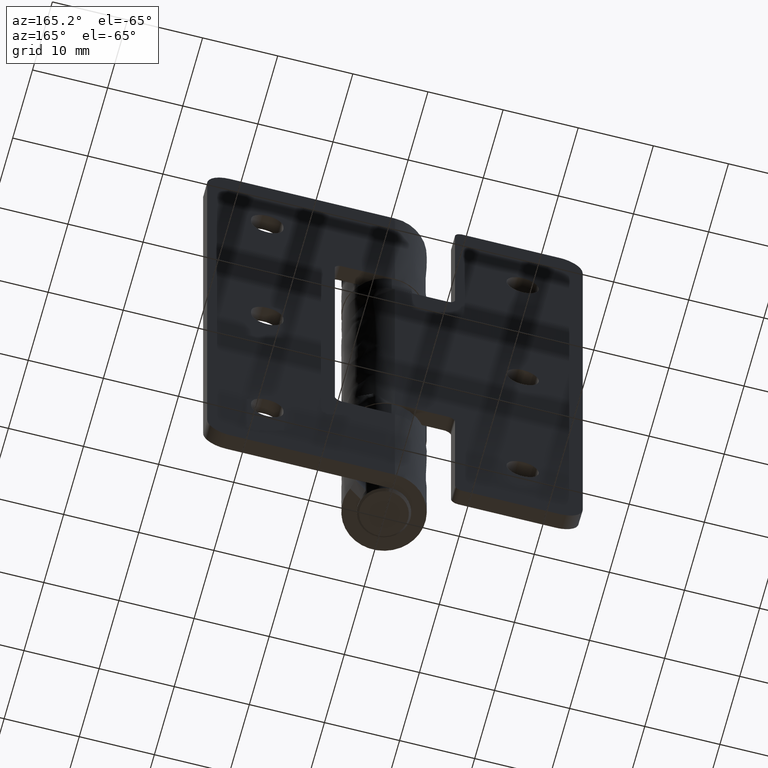
[diagram: clean part render]
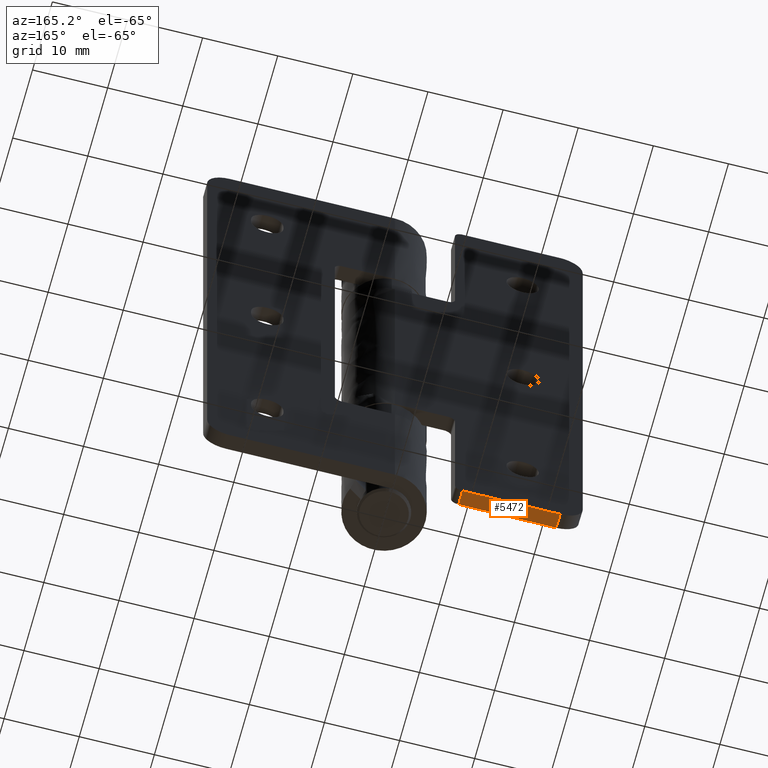
[diagram: same view with one face highlighted and labeled with its STEP entity id]
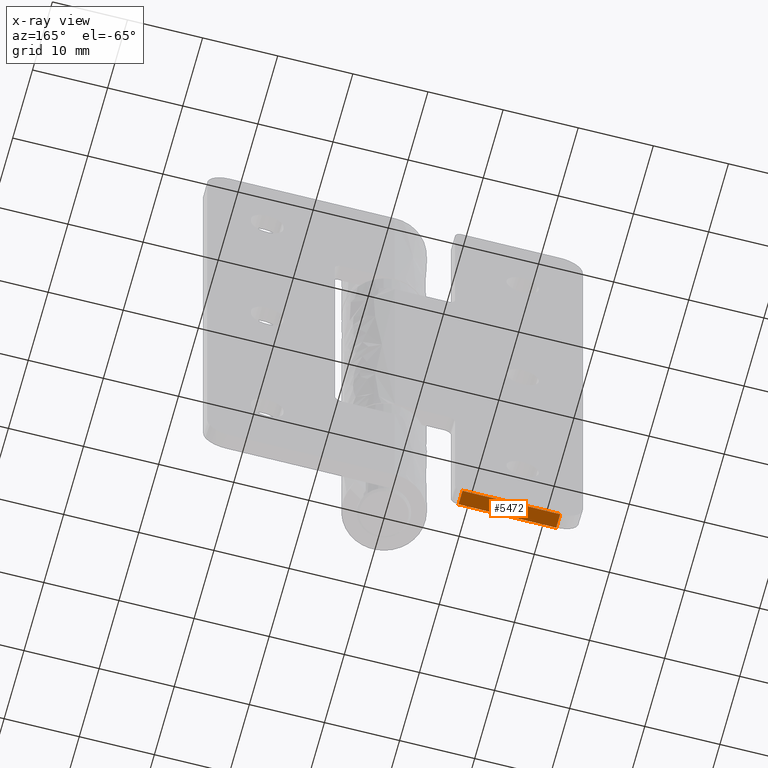
[diagram: x-ray of the same camera — body ghosted, the highlighted face saturated]
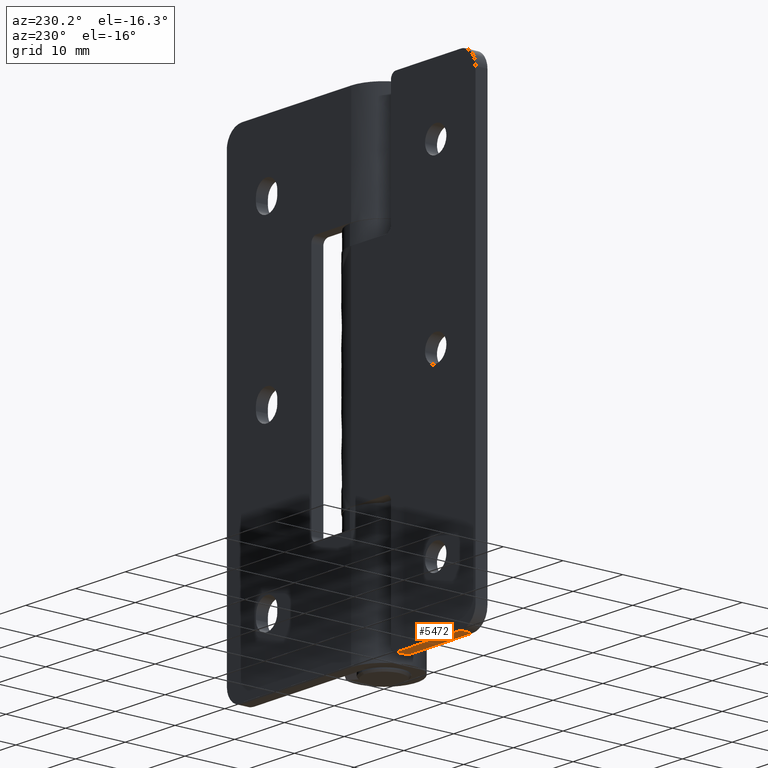
[diagram: same view with one face highlighted and labeled with its STEP entity id]
A machine part, auxiliary view. The second image highlights one B-rep face of the part: STEP entity #5472.
The next image is the same camera in x-ray: the body ghosted, the highlighted face saturated — about 0% of this face is hidden behind the body in this view.
A second angle (auxiliary view) of the same face is appended — the face is thin or edge-on in the first view.
In plain terms, the highlighted face is a freeform B-spline surface patch.
Its self-contained STEP definition (entity closure, byte-faithful):
#5167=CARTESIAN_POINT('',(-9.0,3.500000000000230,0.0));
#5168=VERTEX_POINT('',#5167);
#5184=CARTESIAN_POINT('',(-9.0,5.500000000000229,0.0));
#5185=VERTEX_POINT('',#5184);
#5186=CARTESIAN_POINT('',(-9.0,5.500000000000229,0.0));
#5187=CARTESIAN_POINT('',(-9.0,3.500000000000230,0.0));
#5188=QUASI_UNIFORM_CURVE('',1,(#5186,#5187),.UNSPECIFIED.,.F.,.U.);
#5189=EDGE_CURVE('',#5185,#5168,#5188,.T.);
#5350=CARTESIAN_POINT('',(-22.000000000000249,5.500000000000229,0.0));
#5351=VERTEX_POINT('',#5350);
#5367=CARTESIAN_POINT('',(-22.000000000000249,3.500000000000230,0.0));
#5368=VERTEX_POINT('',#5367);
#5369=CARTESIAN_POINT('',(-22.000000000000249,3.500000000000230,0.0));
#5370=CARTESIAN_POINT('',(-22.000000000000249,5.500000000000229,0.0));
#5371=QUASI_UNIFORM_CURVE('',1,(#5369,#5370),.UNSPECIFIED.,.F.,.U.);
#5372=EDGE_CURVE('',#5368,#5351,#5371,.T.);
#5453=CARTESIAN_POINT('',(-22.649349974803741,5.599899996123842,-8.526513E-014));
#5454=CARTESIAN_POINT('',(-8.350649676509335,5.599899996123842,-8.526513E-014));
#5455=CARTESIAN_POINT('',(-22.649349974803741,3.400099950232438,-8.526513E-014));
#5456=CARTESIAN_POINT('',(-8.350649676509335,3.400099950232438,-8.526513E-014));
#5457=B_SPLINE_SURFACE_WITH_KNOTS('',1,1,((#5453,#5455),(#5454,#5456)),.UNSPECIFIED.,.F.,.F.,.U.,(2,2),(2,2),(0.0,14.298700298294399),(0.0,2.199800045891404),.UNSPECIFIED.);
#5458=CARTESIAN_POINT('',(-9.0,5.500000000000229,0.0));
#5459=CARTESIAN_POINT('',(-22.000000000000249,5.500000000000229,0.0));
#5460=QUASI_UNIFORM_CURVE('',1,(#5458,#5459),.UNSPECIFIED.,.F.,.U.);
#5461=EDGE_CURVE('',#5185,#5351,#5460,.T.);
#5462=ORIENTED_EDGE('',*,*,#5461,.F.);
#5463=ORIENTED_EDGE('',*,*,#5189,.T.);
#5464=CARTESIAN_POINT('',(-22.000000000000249,3.500000000000230,0.0));
#5465=CARTESIAN_POINT('',(-9.0,3.500000000000230,0.0));
#5466=QUASI_UNIFORM_CURVE('',1,(#5464,#5465),.UNSPECIFIED.,.F.,.U.);
#5467=EDGE_CURVE('',#5368,#5168,#5466,.T.);
#5468=ORIENTED_EDGE('',*,*,#5467,.F.);
#5469=ORIENTED_EDGE('',*,*,#5372,.T.);
#5470=EDGE_LOOP('',(#5462,#5463,#5468,#5469));
#5471=FACE_OUTER_BOUND('',#5470,.T.);
#5472=ADVANCED_FACE('',(#5471),#5457,.T.);